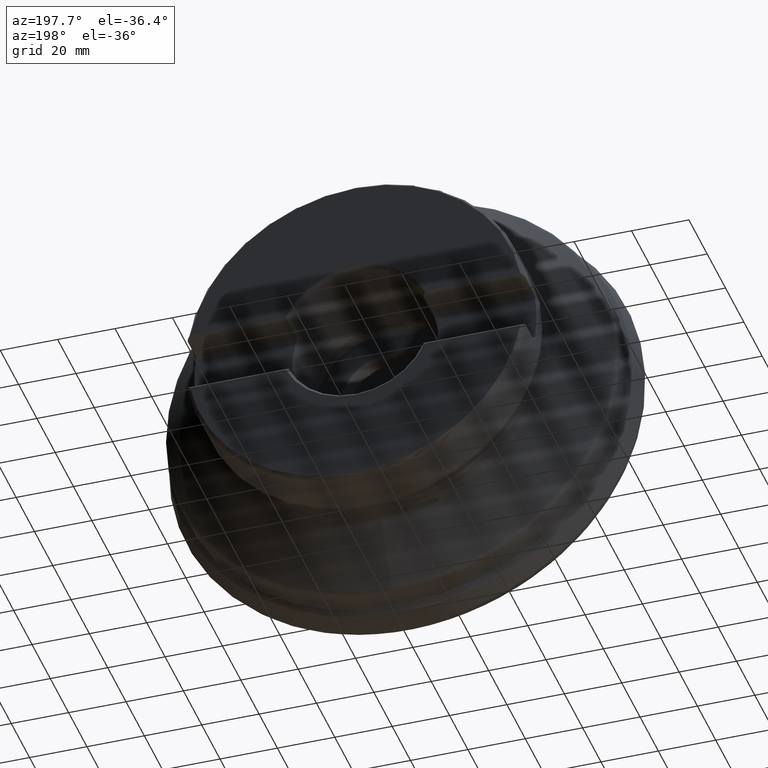
[diagram: clean part render]
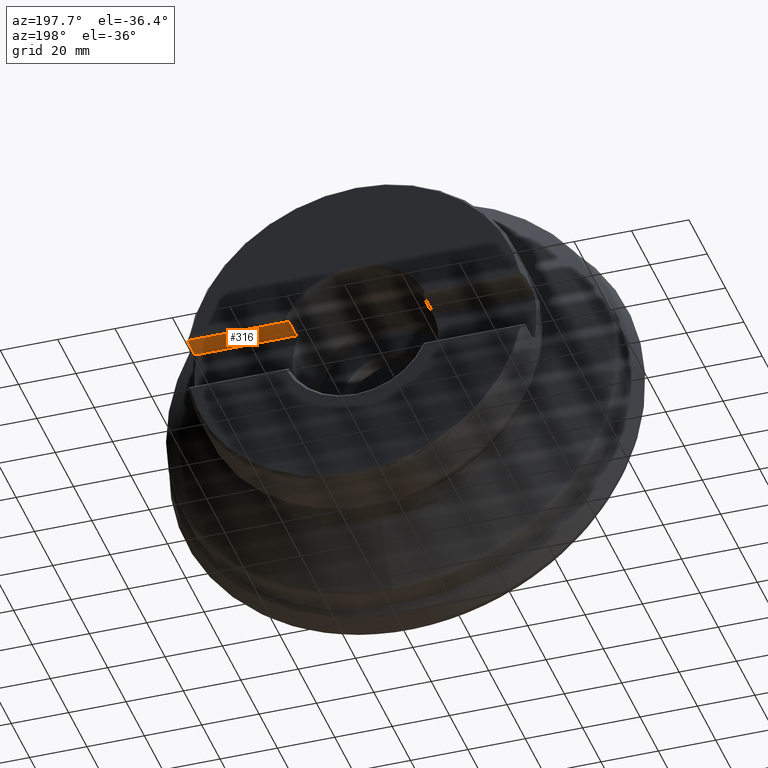
[diagram: same view with one face highlighted and labeled with its STEP entity id]
A machine part, auxiliary view. The second image highlights one B-rep face of the part: STEP entity #316.
In plain terms, the highlighted planar face has unit normal (-0, 0, -1).
Its self-contained STEP definition (entity closure, byte-faithful):
#150=PLANE('',#1069);
#190=FACE_OUTER_BOUND('',#482,.T.);
#211=B_SPLINE_CURVE_WITH_KNOTS('',3,(#1516,#1517,#1518,#1519,#1520,#1521,
#1522),.UNSPECIFIED.,.F.,.F.,(4,3,4),(0.,0.708331114558432,1.),
 .UNSPECIFIED.);
#225=B_SPLINE_CURVE_WITH_KNOTS('',3,(#1710,#1711,#1712,#1713,#1714,#1715,
#1716),.UNSPECIFIED.,.F.,.F.,(4,3,4),(0.,0.325223038403533,1.),
 .UNSPECIFIED.);
#226=B_SPLINE_CURVE_WITH_KNOTS('',3,(#1719,#1720,#1721,#1722),
 .UNSPECIFIED.,.F.,.F.,(4,4),(0.,1.),.UNSPECIFIED.);
#254=LINE('',#1437,#278);
#262=LINE('',#1633,#286);
#270=LINE('',#1724,#294);
#271=LINE('',#1725,#295);
#278=VECTOR('',#1153,1.);
#286=VECTOR('',#1199,1.);
#294=VECTOR('',#1223,1.);
#295=VECTOR('',#1224,1.);
#316=ADVANCED_FACE('',(#190),#150,.T.);
#482=EDGE_LOOP('',(#647,#648,#649,#650,#651,#652,#653));
#647=ORIENTED_EDGE('',*,*,#928,.F.);
#648=ORIENTED_EDGE('',*,*,#929,.T.);
#649=ORIENTED_EDGE('',*,*,#930,.T.);
#650=ORIENTED_EDGE('',*,*,#891,.F.);
#651=ORIENTED_EDGE('',*,*,#880,.T.);
#652=ORIENTED_EDGE('',*,*,#911,.T.);
#653=ORIENTED_EDGE('',*,*,#931,.F.);
#794=VERTEX_POINT('',#1436);
#795=VERTEX_POINT('',#1438);
#804=VERTEX_POINT('',#1523);
#818=VERTEX_POINT('',#1632);
#831=VERTEX_POINT('',#1717);
#832=VERTEX_POINT('',#1718);
#833=VERTEX_POINT('',#1723);
#880=EDGE_CURVE('',#795,#794,#254,.T.);
#891=EDGE_CURVE('',#795,#804,#211,.T.);
#911=EDGE_CURVE('',#794,#818,#262,.T.);
#928=EDGE_CURVE('',#831,#832,#225,.T.);
#929=EDGE_CURVE('',#831,#833,#226,.T.);
#930=EDGE_CURVE('',#833,#804,#270,.T.);
#931=EDGE_CURVE('',#832,#818,#271,.T.);
#1069=AXIS2_PLACEMENT_3D('',#1726,#1225,#1226);
#1153=DIRECTION('',(0.,-1.,0.));
#1199=DIRECTION('',(-1.,2.80161754078923E-17,5.55111512312578E-17));
#1223=DIRECTION('',(1.,0.,-5.55111512312578E-17));
#1224=DIRECTION('',(-2.80161754078923E-17,-1.,-4.51372080642067E-19));
#1225=DIRECTION('',(-5.55111512312578E-17,4.51372080642069E-19,-1.));
#1226=DIRECTION('',(2.77555756156289E-17,1.,0.));
#1436=CARTESIAN_POINT('',(58.8924483698886,53.6,9.72499999999999));
#1437=CARTESIAN_POINT('',(58.8924483698886,63.2,9.72499999999999));
#1438=CARTESIAN_POINT('',(58.8924483698886,61.2,9.725));
#1516=CARTESIAN_POINT('',(58.8924483698886,61.2,9.725));
#1517=CARTESIAN_POINT('',(58.8924483698886,61.3936157791581,9.725));
#1518=CARTESIAN_POINT('',(58.8633185574074,61.5892827442869,9.725));
#1519=CARTESIAN_POINT('',(58.8070077296999,61.7745289605017,9.725));
#1520=CARTESIAN_POINT('',(58.783688420292,61.8512426940487,9.725));
#1521=CARTESIAN_POINT('',(58.7556486044843,61.9266747792708,9.725));
#1522=CARTESIAN_POINT('',(58.7232109857218,62.0000000000001,9.725));
#1523=CARTESIAN_POINT('',(58.7232109857218,62.0000000000001,9.725));
#1632=CARTESIAN_POINT('',(23.4645344083363,53.6,9.725));
#1633=CARTESIAN_POINT('',(-110.,53.6,9.72500000000001));
#1710=CARTESIAN_POINT('',(23.5431213577308,61.9731099373595,9.725));
#1711=CARTESIAN_POINT('',(23.5346040056883,61.6724834652233,9.725));
#1712=CARTESIAN_POINT('',(23.5260859804839,61.3718570121584,9.725));
#1713=CARTESIAN_POINT('',(23.5175672799212,61.0712305782315,9.725));
#1714=CARTESIAN_POINT('',(23.4998925699478,60.4474869695781,9.725));
#1715=CARTESIAN_POINT('',(23.4822149526708,59.8237434433007,9.725));
#1716=CARTESIAN_POINT('',(23.4645344083363,59.2,9.725));
#1717=CARTESIAN_POINT('',(23.5431213577308,61.9731099373595,9.725));
#1718=CARTESIAN_POINT('',(23.4645344083363,59.2,9.725));
#1719=CARTESIAN_POINT('',(23.5431213577308,61.9731099373595,9.725));
#1720=CARTESIAN_POINT('',(23.5528188402653,61.9820728567643,9.725));
#1721=CARTESIAN_POINT('',(23.5625159204714,61.9910362114903,9.725));
#1722=CARTESIAN_POINT('',(23.5722125996617,62.,9.725));
#1723=CARTESIAN_POINT('',(23.5722125996617,62.,9.725));
#1724=CARTESIAN_POINT('',(57.7486487029882,62.,9.725));
#1725=CARTESIAN_POINT('',(23.4645344083363,-6.6177610533272E-16,9.725));
#1726=CARTESIAN_POINT('',(-110.,52.,9.72500000000001));